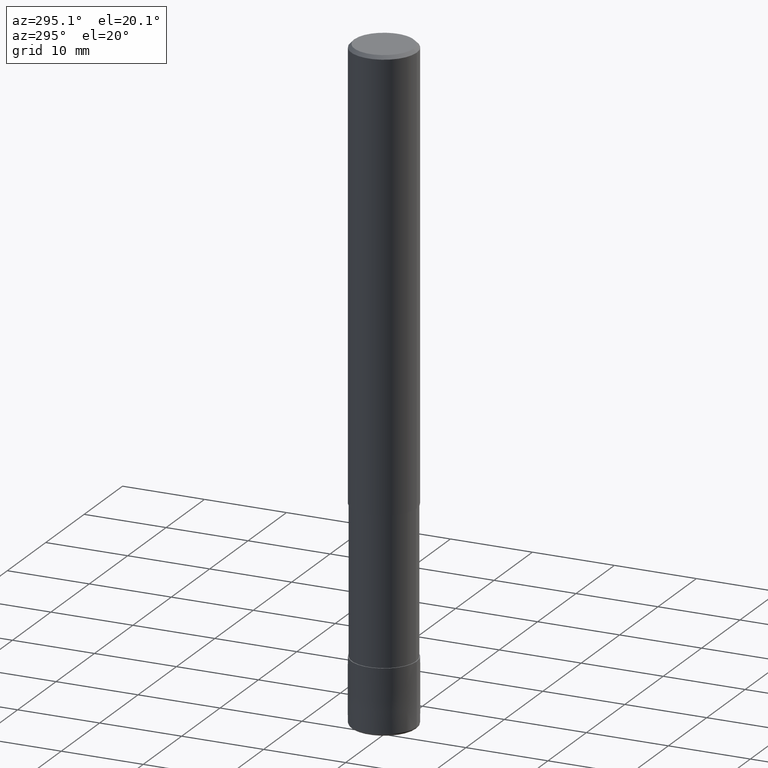
[diagram: clean part render]
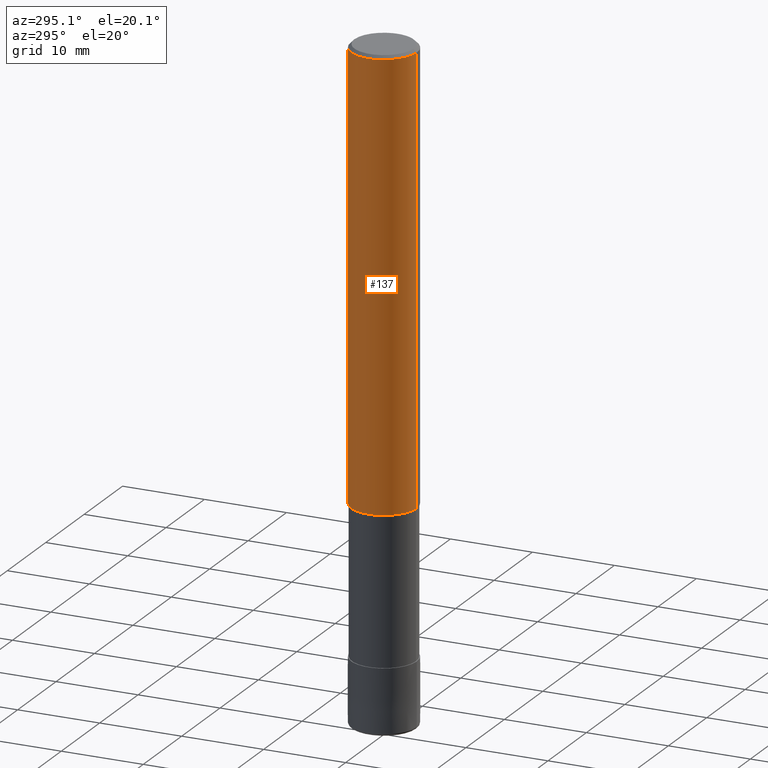
[diagram: same view with one face highlighted and labeled with its STEP entity id]
A machine part, auxiliary view. The second image highlights one B-rep face of the part: STEP entity #137.
In plain terms, the highlighted cylindrical surface (edge-blend (fillet) strip) has radius 4 mm, axis along (-0, -0, 1).
Its self-contained STEP definition (entity closure, byte-faithful):
#119=EDGE_CURVE('',#231,#205,#306,.T.);
#129=VERTEX_POINT('',#317);
#137=ADVANCED_FACE('',(#327),#328,.T.);
#149=VERTEX_POINT('',#341);
#177=EDGE_CURVE('',#231,#149,#374,.T.);
#195=EDGE_CURVE('',#129,#205,#394,.T.);
#205=VERTEX_POINT('',#404);
#231=VERTEX_POINT('',#434);
#239=EDGE_CURVE('',#149,#129,#443,.T.);
#306=CIRCLE('',#510,4.0);
#317=CARTESIAN_POINT('',(0.0,4.0,-0.399999999999999));
#327=FACE_OUTER_BOUND('',#536,.T.);
#328=CYLINDRICAL_SURFACE('',#537,4.0);
#341=CARTESIAN_POINT('',(4.89842541528951E-016,-4.0,-0.399999999999999));
#374=LINE('',#598,#599);
#394=LINE('',#624,#625);
#404=CARTESIAN_POINT('',(0.0,4.0,-54.0));
#434=CARTESIAN_POINT('',(4.89842541528951E-016,-4.0,-54.0));
#443=CIRCLE('',#683,4.0);
#510=AXIS2_PLACEMENT_3D('',#747,#748,#749);
#536=EDGE_LOOP('',(#777,#778,#779,#780));
#537=AXIS2_PLACEMENT_3D('',#781,#782,#783);
#598=CARTESIAN_POINT('',(4.89842541528951E-016,-4.0,-27.2));
#599=VECTOR('',#843,1.0);
#624=CARTESIAN_POINT('',(-4.89842541528951E-016,4.0,-27.2));
#625=VECTOR('',#867,1.0);
#683=AXIS2_PLACEMENT_3D('',#924,#925,#926);
#747=CARTESIAN_POINT('',(0.0,0.0,-54.0));
#748=DIRECTION('',(0.0,0.0,-1.0));
#749=DIRECTION('',(0.0,1.0,0.0));
#777=ORIENTED_EDGE('',*,*,#195,.T.);
#778=ORIENTED_EDGE('',*,*,#119,.F.);
#779=ORIENTED_EDGE('',*,*,#177,.T.);
#780=ORIENTED_EDGE('',*,*,#239,.T.);
#781=CARTESIAN_POINT('',(0.0,0.0,-27.2));
#782=DIRECTION('',(-0.0,-0.0,1.0));
#783=DIRECTION('',(0.0,1.0,0.0));
#843=DIRECTION('',(-0.0,-0.0,1.0));
#867=DIRECTION('',(0.0,0.0,-1.0));
#924=CARTESIAN_POINT('',(0.0,0.0,-0.399999999999999));
#925=DIRECTION('',(0.0,0.0,-1.0));
#926=DIRECTION('',(0.0,1.0,0.0));